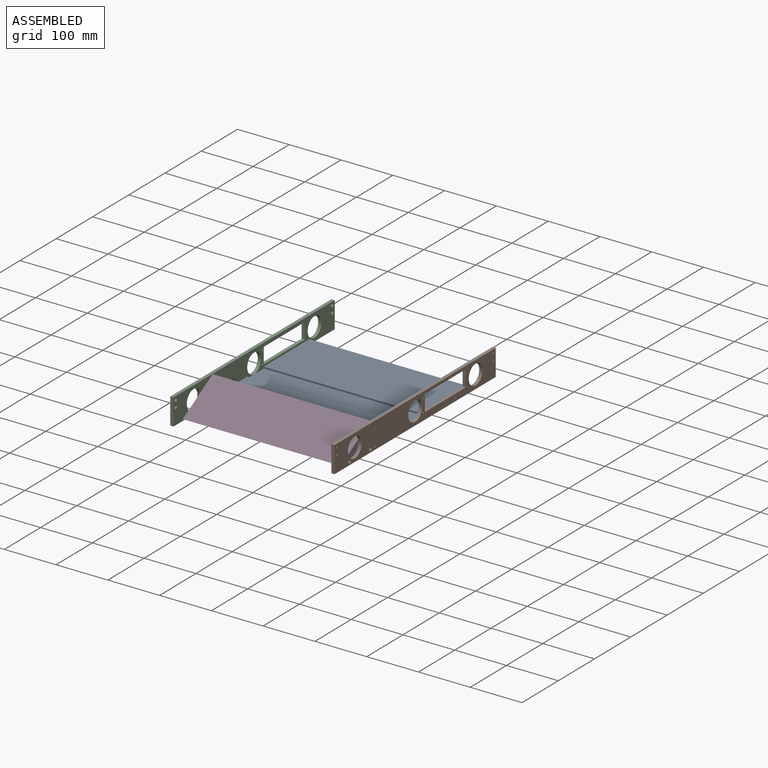
[diagram: assembled view]
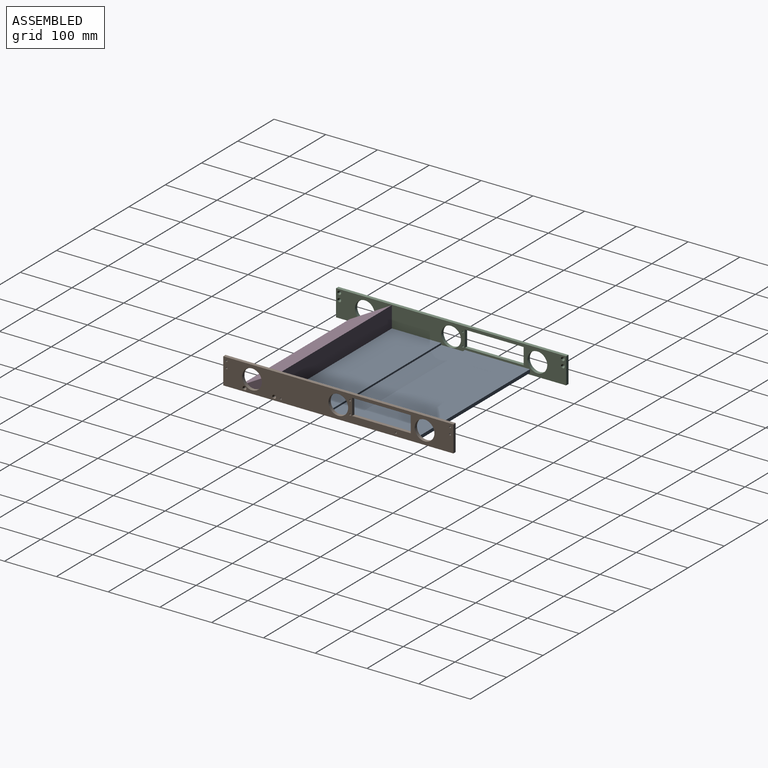
[diagram: assembled view, second angle]
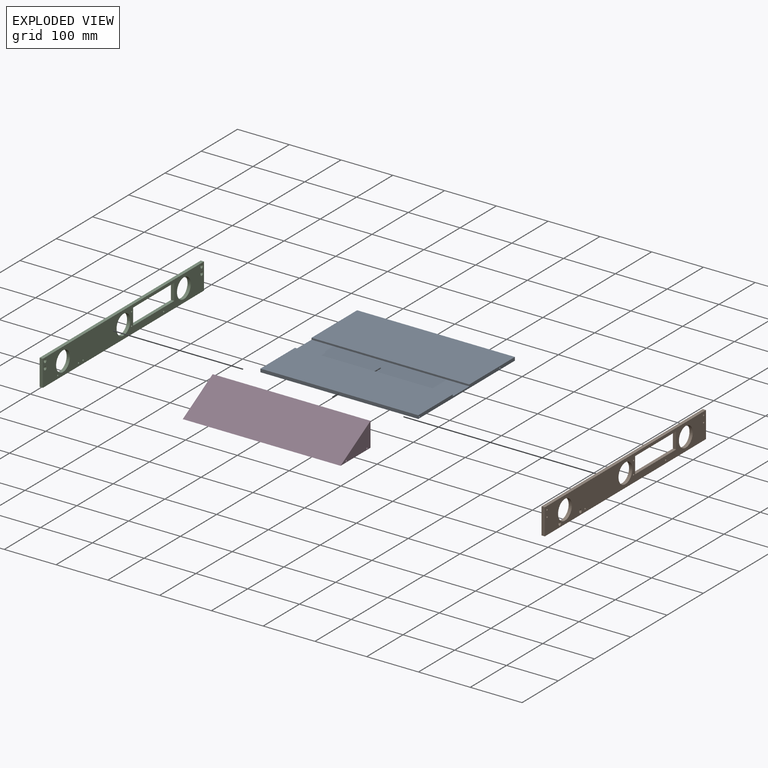
[diagram: exploded view]
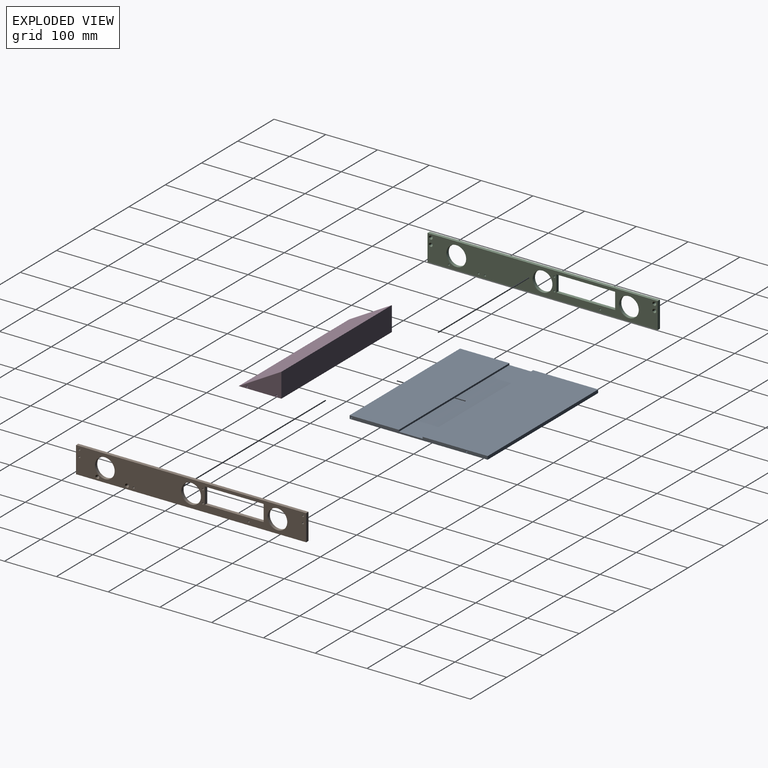
[diagram: exploded view, second angle]
ASSEMBLY  parts=4 mates=3
PART A: 12 faces, bbox 304.8x266.7x6.4 mm
  f0: plane 304.8x125.73mm, normal (0,0,1), area 38322.5mm2, adj f1,f3,f4,f11
  f1: plane 266.7x6.35mm, normal (-1,0,0), area 1523.8mm2, adj f0,f2,f4,f5,f6,f7,f8,f9
  f2: plane 304.8x6.35mm, normal (0,-1,0), area 1935.5mm2, adj f1,f3,f5,f6
  f3: plane 266.7x6.35mm, normal (1,0,0), area 1523.8mm2, adj f0,f2,f4,f5,f6,f7,f8,f9
  f4: plane 304.8x6.35mm, normal (0,1,0), area 1935.5mm2, adj f0,f1,f3,f6
  f5: plane 304.8x95.25mm, normal (0,0,1), area 29032.2mm2, adj f1,f2,f3,f9
  f6: plane 304.8x266.7mm, normal (0,0,-1), area 81290.2mm2, adj f1,f2,f3,f4
  f7: cylinder r=1.73mm len=304.8mm, axis (1,0,0), area 3307.8mm2, adj f1,f3
  f8: cylinder r=1.73mm len=304.8mm, axis (1,0,0), area 3307.8mm2, adj f1,f3
  f9: plane 304.8x3.3mm, normal (0,1,0), area 1006.4mm2, adj f1,f3,f5,f10
  f10: plane 304.8x45.72mm, normal (0,0,1), area 13935.5mm2, adj f1,f3,f9,f11
  f11: plane 304.8x3.3mm, normal (0,-1,0), area 1006.4mm2, adj f0,f1,f3,f10
PART B: 29 faces, bbox 6.4x444.5x50.8 mm
  f0: plane 444.5x50.8mm, normal (1,0,0), area 15406.5mm2, adj f2,f3,f4,f5,f6,f7,f8,f9
  f1: plane 444.5x50.8mm, normal (-1,0,0), area 15345.3mm2, adj f2,f3,f4,f5,f6,f7,f8,f10
  f2: plane 50.8x6.35mm, normal (0,-1,0), area 322.6mm2, adj f0,f1,f3,f7
  f3: plane 444.5x6.35mm, normal (0,0,-1), area 2822.6mm2, adj f0,f1,f2,f4
  f4: plane 50.8x6.35mm, normal (0,1,0), area 322.6mm2, adj f0,f1,f3,f7
  f5: cylinder r=19.05mm len=38.1mm, axis (-1,0,0), area 760.1mm2, adj f0,f1
  f6: cylinder r=19.05mm len=38.1mm, axis (-1,0,0), area 760.1mm2, adj f0,f1
  f7: plane 444.5x6.35mm, normal (0,0,1), area 2822.6mm2, adj f0,f1,f2,f4
  f8: cylinder r=19.05mm len=38.1mm, axis (-1,0,0), area 760.1mm2, adj f0,f1
  f9: cylinder r=1.73mm len=4.23mm, axis (-1,0,0), area 45.9mm2, adj f0,f10
  f10: cone r=1.73mm half-angle=41deg, axis (-1,0,0), area 46.7mm2, adj f1,f9
  f11: cylinder r=1.73mm len=4.23mm, axis (-1,0,0), area 45.9mm2, adj f0,f12
  f12: cone r=1.73mm half-angle=41deg, axis (-1,0,0), area 46.7mm2, adj f1,f11
  f13: cylinder r=1.73mm len=4.23mm, axis (-1,0,0), area 45.9mm2, adj f0,f14
  f14: cone r=1.73mm half-angle=41deg, axis (-1,0,0), area 46.7mm2, adj f1,f13
  f15: cylinder r=1.73mm len=4.23mm, axis (-1,0,0), area 45.9mm2, adj f0,f16
  f16: cone r=1.73mm half-angle=41deg, axis (-1,0,0), area 46.7mm2, adj f1,f15
  f17: plane 113.35x6.35mm, normal (0,0,-1), area 719.8mm2, adj f0,f1,f18,f20
  f18: plane 31.75x6.35mm, normal (0,1,0), area 201.6mm2, adj f0,f1,f17,f19
  f19: plane 113.35x6.35mm, normal (0,0,1), area 719.8mm2, adj f0,f1,f18,f20
  f20: plane 31.75x6.35mm, normal (0,-1,0), area 201.6mm2, adj f0,f1,f17,f19
  f21: cylinder r=1.73mm len=6.35mm, axis (-1,0,0), area 68.9mm2, adj f0,f1
  f22: cylinder r=1.73mm len=6.35mm, axis (-1,0,0), area 68.9mm2, adj f0,f1
  f23: cylinder r=1.73mm len=4.23mm, axis (1,0,0), area 45.9mm2, adj f1,f24
  f24: cone r=1.73mm half-angle=41deg, axis (1,0,0), area 46.7mm2, adj f0,f23
  f25: cylinder r=1.73mm len=4.23mm, axis (1,0,0), area 45.9mm2, adj f1,f26
  f26: cone r=1.73mm half-angle=41deg, axis (1,0,0), area 46.7mm2, adj f0,f25
  f27: cylinder r=1.73mm len=6.35mm, axis (1,0,0), area 68.9mm2, adj f0,f1
  f28: cylinder r=1.73mm len=6.35mm, axis (1,0,0), area 68.9mm2, adj f0,f1
PART C: 29 faces, bbox 6.4x444.5x50.8 mm
  f0: plane 444.5x50.8mm, normal (1,0,0), area 15345.3mm2, adj f2,f3,f4,f5,f6,f7,f8,f10
  f1: plane 444.5x50.8mm, normal (-1,0,0), area 15406.5mm2, adj f2,f3,f4,f5,f6,f7,f8,f9
  f2: plane 50.8x6.35mm, normal (0,-1,0), area 322.6mm2, adj f0,f1,f3,f7
  f3: plane 444.5x6.35mm, normal (0,0,-1), area 2822.6mm2, adj f0,f1,f2,f4
  f4: plane 50.8x6.35mm, normal (0,1,0), area 322.6mm2, adj f0,f1,f3,f7
  f5: cylinder r=19.05mm len=38.1mm, axis (-1,0,0), area 760.1mm2, adj f0,f1
  f6: cylinder r=19.05mm len=38.1mm, axis (-1,0,0), area 760.1mm2, adj f0,f1
  f7: plane 444.5x6.35mm, normal (0,0,1), area 2822.6mm2, adj f0,f1,f2,f4
  f8: cylinder r=19.05mm len=38.1mm, axis (-1,0,0), area 760.1mm2, adj f0,f1
  f9: cylinder r=1.73mm len=4.23mm, axis (1,0,0), area 45.9mm2, adj f1,f10
  f10: cone r=1.73mm half-angle=41deg, axis (1,0,0), area 46.7mm2, adj f0,f9
  f11: cylinder r=1.73mm len=4.23mm, axis (1,0,0), area 45.9mm2, adj f1,f12
  f12: cone r=1.73mm half-angle=41deg, axis (1,0,0), area 46.7mm2, adj f0,f11
  f13: cylinder r=1.73mm len=4.23mm, axis (1,0,0), area 45.9mm2, adj f1,f14
  f14: cone r=1.73mm half-angle=41deg, axis (1,0,0), area 46.7mm2, adj f0,f13
  f15: cylinder r=1.73mm len=4.23mm, axis (1,0,0), area 45.9mm2, adj f1,f16
  f16: cone r=1.73mm half-angle=41deg, axis (1,0,0), area 46.7mm2, adj f0,f15
  f17: plane 113.35x6.35mm, normal (0,0,-1), area 719.8mm2, adj f0,f1,f18,f20
  f18: plane 31.75x6.35mm, normal (0,-1,0), area 201.6mm2, adj f0,f1,f17,f19
  f19: plane 113.35x6.35mm, normal (0,0,1), area 719.8mm2, adj f0,f1,f18,f20
  f20: plane 31.75x6.35mm, normal (0,1,0), area 201.6mm2, adj f0,f1,f17,f19
  f21: cylinder r=1.73mm len=6.35mm, axis (1,0,0), area 68.9mm2, adj f0,f1
  f22: cylinder r=1.73mm len=6.35mm, axis (1,0,0), area 68.9mm2, adj f0,f1
  f23: cylinder r=1.73mm len=4.23mm, axis (-1,0,0), area 45.9mm2, adj f0,f24
  f24: cone r=1.73mm half-angle=41deg, axis (-1,0,0), area 46.7mm2, adj f1,f23
  f25: cylinder r=1.73mm len=4.23mm, axis (-1,0,0), area 45.9mm2, adj f0,f26
  f26: cone r=1.73mm half-angle=41deg, axis (-1,0,0), area 46.7mm2, adj f1,f25
  f27: cylinder r=1.73mm len=6.35mm, axis (1,0,0), area 68.9mm2, adj f0,f1
  f28: cylinder r=1.73mm len=6.35mm, axis (1,0,0), area 68.9mm2, adj f0,f1
PART D: 7 faces, bbox 304.8x82.6x47 mm
  f0: plane 304.8x82.55mm, normal (0,-0.49,0.87), area 28952.1mm2, adj f1,f2,f3,f4
  f1: plane 304.8x82.55mm, normal (0,0,-1), area 25161.2mm2, adj f0,f2,f3,f4
  f2: plane 304.8x46.99mm, normal (0,1,0), area 14322.6mm2, adj f0,f1,f3,f4
  f3: plane 82.55x46.99mm, normal (1,0,0), area 1920.8mm2, adj f0,f1,f2,f5,f6
  f4: plane 82.55x46.99mm, normal (-1,0,0), area 1920.8mm2, adj f0,f1,f2,f5,f6
  f5: cylinder r=1.73mm len=304.8mm, axis (1,0,0), area 3307.8mm2, adj f3,f4
  f6: cylinder r=1.73mm len=304.8mm, axis (1,0,0), area 3307.8mm2, adj f3,f4
PLACE A t=(470.41,223.93,6.04)mm
PLACE B t=(470.41,115.98,2.86)mm
PLACE C t=(159.26,115.98,2.86)mm
PLACE D t=(165.61,141.38,6.04)mm
MATE fastened A.f6 <-> D.f1  axis (0,0,1) through (165.61,223.93,6.04)mm
MATE fastened A.f8 <-> C.f21  axis (-1,0,0) through (165.61,227.11,9.21)mm
MATE fastened A.f8 <-> B.f21  axis (1,0,0) through (470.41,227.11,9.21)mm
